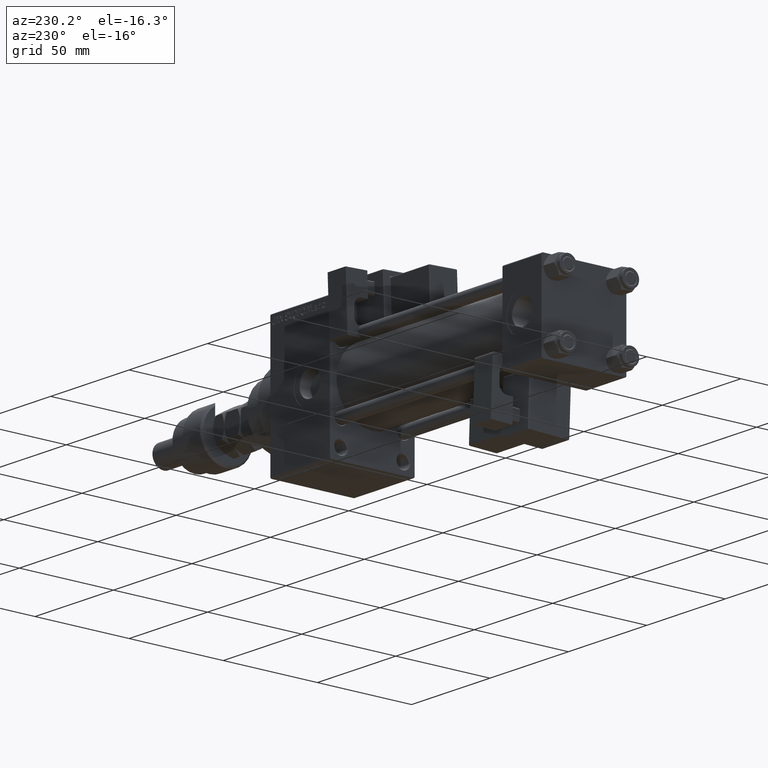
[diagram: clean part render]
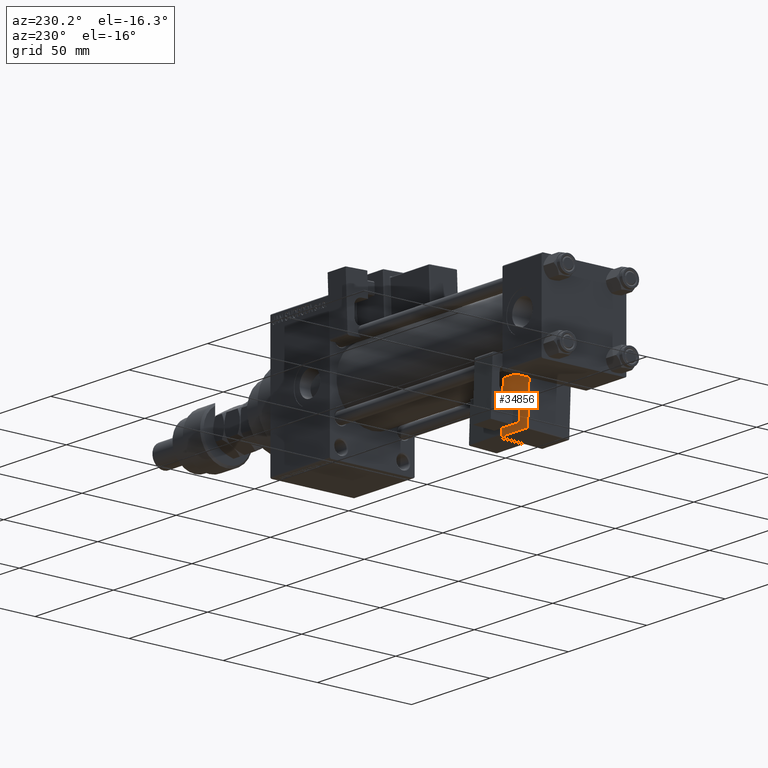
[diagram: same view with one face highlighted and labeled with its STEP entity id]
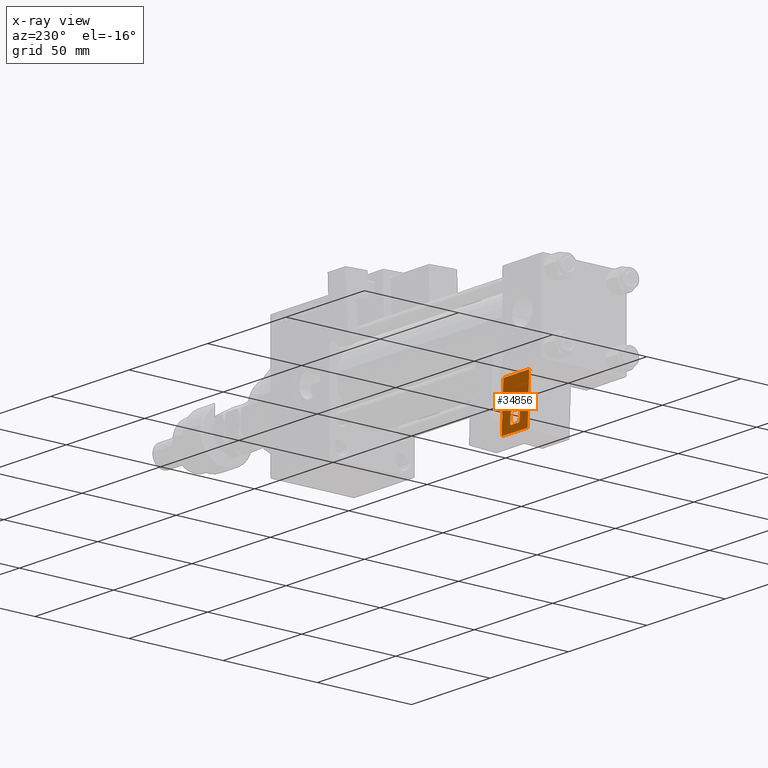
[diagram: x-ray of the same camera — body ghosted, the highlighted face saturated]
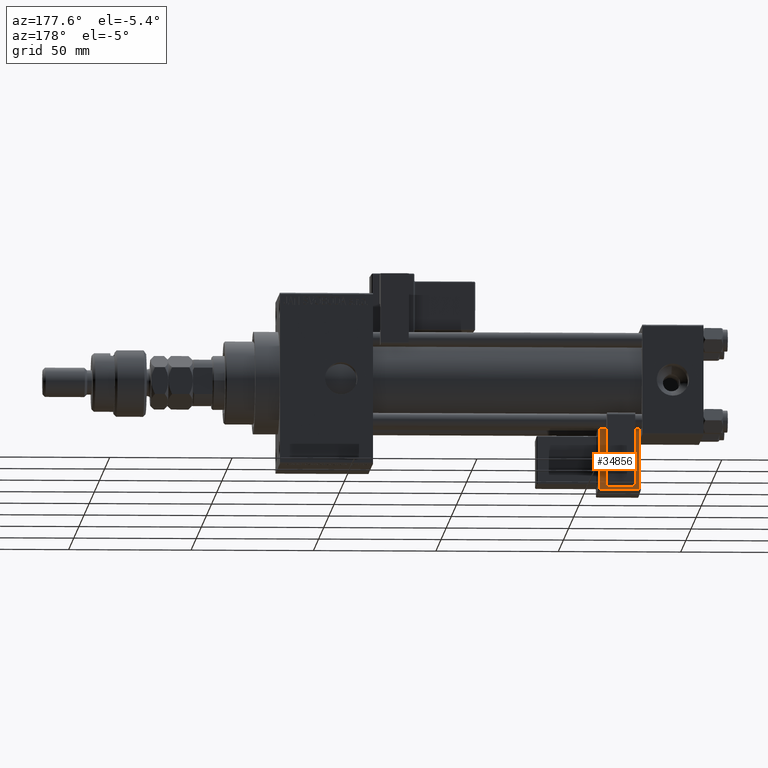
[diagram: same view with one face highlighted and labeled with its STEP entity id]
A machine part, auxiliary view. The second image highlights one B-rep face of the part: STEP entity #34856.
The next image is the same camera in x-ray: the body ghosted, the highlighted face saturated — about 0% of this face is hidden behind the body in this view.
A second angle (auxiliary view) of the same face is appended — the face is thin or edge-on in the first view.
In plain terms, the highlighted planar face has unit normal (0, 0.9994, 0.0353).
Its self-contained STEP definition (entity closure, byte-faithful):
#891 = DIRECTION ( 'NONE',  ( -1.000000000000000000, 0.000000000000000000, -0.000000000000000000 ) ) ;
#1027 = CARTESIAN_POINT ( 'NONE',  ( -3.000000000000000000, -11.75000000000000000, 8.500000000000007105 ) ) ;
#1436 = CARTESIAN_POINT ( 'NONE',  ( 2.499999999999993339, -11.75000000000000000, 3.000000000000000888 ) ) ;
#1478 = CARTESIAN_POINT ( 'NONE',  ( 0.000000000000000000, -11.75000000000000000, 0.000000000000000000 ) ) ;
#1954 = EDGE_LOOP ( 'NONE', ( #50515, #25969, #13470, #30075, #51032, #44655, #44697, #18628 ) ) ;
#2463 = VERTEX_POINT ( 'NONE', #7287 ) ;
#2819 = VERTEX_POINT ( 'NONE', #1436 ) ;
#2829 = EDGE_CURVE ( 'NONE', #14509, #36938, #38716, .T. ) ;
#3133 = VERTEX_POINT ( 'NONE', #48166 ) ;
#3231 = VERTEX_POINT ( 'NONE', #1027 ) ;
#3825 = CARTESIAN_POINT ( 'NONE',  ( 8.250000000000003553, -11.75000000000000000, -1.000000000000000888 ) ) ;
#4414 = CARTESIAN_POINT ( 'NONE',  ( 2.500000000000006661, -11.75000000000000000, 9.000000000000001776 ) ) ;
#4657 = DIRECTION ( 'NONE',  ( -1.445602896647339163E-16, -0.000000000000000000, 1.000000000000000000 ) ) ;
#5098 = DIRECTION ( 'NONE',  ( 0.7071067811865474617, -0.000000000000000000, 0.7071067811865474617 ) ) ;
#6750 = ORIENTED_EDGE ( 'NONE', *, *, #9526, .T. ) ;
#7147 = EDGE_LOOP ( 'NONE', ( #14322, #11054, #6750, #38954 ) ) ;
#7287 = CARTESIAN_POINT ( 'NONE',  ( 3.000000000000000888, -11.75000000000000000, 3.500000000000008438 ) ) ;
#8941 = CARTESIAN_POINT ( 'NONE',  ( -8.250000000000000000, -11.75000000000000000, 25.00000000000000000 ) ) ;
#9526 = EDGE_CURVE ( 'NONE', #13306, #37833, #50771, .T. ) ;
#9540 = CARTESIAN_POINT ( 'NONE',  ( -8.250000000000000000, -11.75000000000000000, 24.50000000000000000 ) ) ;
#11052 = EDGE_CURVE ( 'NONE', #3231, #36776, #39414, .T. ) ;
#11054 = ORIENTED_EDGE ( 'NONE', *, *, #14532, .T. ) ;
#11594 = VECTOR ( 'NONE', #891, 1000.000000000000000 ) ;
#12960 = CARTESIAN_POINT ( 'NONE',  ( -8.750000000000003553, -11.75000000000000000, -0.5000000000000002220 ) ) ;
#13052 = CARTESIAN_POINT ( 'NONE',  ( 8.250000000000003553, -11.75000000000000000, -0.5000000000000002220 ) ) ;
#13216 = CARTESIAN_POINT ( 'NONE',  ( 8.750000000000000000, -11.75000000000000000, 24.49999999999999645 ) ) ;
#13306 = VERTEX_POINT ( 'NONE', #9540 ) ;
#13470 = ORIENTED_EDGE ( 'NONE', *, *, #17875, .T. ) ;
#14322 = ORIENTED_EDGE ( 'NONE', *, *, #2829, .T. ) ;
#14509 = VERTEX_POINT ( 'NONE', #13052 ) ;
#14532 = EDGE_CURVE ( 'NONE', #36938, #13306, #17167, .T. ) ;
#14887 = FACE_BOUND ( 'NONE', #1954, .T. ) ;
#15032 = EDGE_CURVE ( 'NONE', #36776, #3133, #45532, .T. ) ;
#16416 = CARTESIAN_POINT ( 'NONE',  ( -3.000000000000000000, -11.75000000000000000, 8.500000000000007105 ) ) ;
#16650 = VECTOR ( 'NONE', #37993, 1000.000000000000000 ) ;
#17167 = LINE ( 'NONE', #8941, #33915 ) ;
#17270 = VECTOR ( 'NONE', #48610, 1000.000000000000000 ) ;
#17519 = CARTESIAN_POINT ( 'NONE',  ( 3.000000000000000000, -11.75000000000000000, 9.000000000000001776 ) ) ;
#17654 = VERTEX_POINT ( 'NONE', #19521 ) ;
#17875 = EDGE_CURVE ( 'NONE', #23540, #33734, #33128, .T. ) ;
#18376 = EDGE_CURVE ( 'NONE', #3133, #2819, #34150, .T. ) ;
#18628 = ORIENTED_EDGE ( 'NONE', *, *, #25183, .T. ) ;
#19521 = CARTESIAN_POINT ( 'NONE',  ( 3.000000000000000000, -11.75000000000000000, 8.500000000000000000 ) ) ;
#20313 = VECTOR ( 'NONE', #5098, 1000.000000000000114 ) ;
#20497 = CARTESIAN_POINT ( 'NONE',  ( 3.000000000000000000, -11.75000000000000000, 9.000000000000001776 ) ) ;
#23540 = VERTEX_POINT ( 'NONE', #35766 ) ;
#23768 = CARTESIAN_POINT ( 'NONE',  ( -3.000000000000000000, -11.75000000000000000, 9.000000000000001776 ) ) ;
#24719 = CARTESIAN_POINT ( 'NONE',  ( -2.499999999999978684, -11.75000000000000000, 3.000000000000000444 ) ) ;
#24974 = CARTESIAN_POINT ( 'NONE',  ( -8.250000000000003553, -11.75000000000000000, -0.5000000000000002220 ) ) ;
#25183 = EDGE_CURVE ( 'NONE', #2819, #2463, #41842, .T. ) ;
#25608 = CARTESIAN_POINT ( 'NONE',  ( -2.499999999999999556, -11.75000000000000000, 9.000000000000001776 ) ) ;
#25969 = ORIENTED_EDGE ( 'NONE', *, *, #37590, .T. ) ;
#26868 = VECTOR ( 'NONE', #36522, 1000.000000000000000 ) ;
#27669 = EDGE_CURVE ( 'NONE', #2463, #17654, #38377, .T. ) ;
#30075 = ORIENTED_EDGE ( 'NONE', *, *, #32142, .T. ) ;
#31014 = VECTOR ( 'NONE', #45751, 1000.000000000000000 ) ;
#32142 = EDGE_CURVE ( 'NONE', #33734, #3231, #36725, .T. ) ;
#33128 = LINE ( 'NONE', #20497, #43743 ) ;
#33154 = DIRECTION ( 'NONE',  ( -0.7071067811865524577, 0.000000000000000000, -0.7071067811865426878 ) ) ;
#33734 = VERTEX_POINT ( 'NONE', #25608 ) ;
#33767 = VECTOR ( 'NONE', #39681, 1000.000000000000000 ) ;
#33915 = VECTOR ( 'NONE', #47318, 1000.000000000000000 ) ;
#34150 = LINE ( 'NONE', #50331, #16650 ) ;
#34856 = ADVANCED_FACE ( 'NONE', ( #35191, #14887 ), #43134, .T. ) ;
#35191 = FACE_OUTER_BOUND ( 'NONE', #7147, .T. ) ;
#35766 = CARTESIAN_POINT ( 'NONE',  ( 2.500000000000006661, -11.75000000000000000, 9.000000000000001776 ) ) ;
#36522 = DIRECTION ( 'NONE',  ( -0.7071067811865426878, -0.000000000000000000, 0.7071067811865524577 ) ) ;
#36725 = LINE ( 'NONE', #16416, #39759 ) ;
#36776 = VERTEX_POINT ( 'NONE', #47761 ) ;
#36938 = VERTEX_POINT ( 'NONE', #24974 ) ;
#37590 = EDGE_CURVE ( 'NONE', #17654, #23540, #41420, .T. ) ;
#37833 = VERTEX_POINT ( 'NONE', #44933 ) ;
#37949 = VECTOR ( 'NONE', #4657, 1000.000000000000000 ) ;
#37993 = DIRECTION ( 'NONE',  ( 1.000000000000000000, -0.000000000000000000, 7.228014483236695816E-17 ) ) ;
#38377 = LINE ( 'NONE', #17519, #37949 ) ;
#38716 = LINE ( 'NONE', #12960, #11594 ) ;
#38954 = ORIENTED_EDGE ( 'NONE', *, *, #54258, .T. ) ;
#39414 = LINE ( 'NONE', #23768, #33767 ) ;
#39578 = DIRECTION ( 'NONE',  ( 0.000000000000000000, -0.000000000000000000, 1.000000000000000000 ) ) ;
#39681 = DIRECTION ( 'NONE',  ( 0.000000000000000000, 0.000000000000000000, -1.000000000000000000 ) ) ;
#39759 = VECTOR ( 'NONE', #33154, 1000.000000000000000 ) ;
#39855 = DIRECTION ( 'NONE',  ( 0.000000000000000000, 1.000000000000000000, 0.000000000000000000 ) ) ;
#41380 = LINE ( 'NONE', #3825, #31014 ) ;
#41420 = LINE ( 'NONE', #4414, #26868 ) ;
#41842 = LINE ( 'NONE', #51149, #20313 ) ;
#43134 = PLANE ( 'NONE',  #47763 ) ;
#43743 = VECTOR ( 'NONE', #54226, 1000.000000000000000 ) ;
#44655 = ORIENTED_EDGE ( 'NONE', *, *, #15032, .T. ) ;
#44697 = ORIENTED_EDGE ( 'NONE', *, *, #18376, .T. ) ;
#44933 = CARTESIAN_POINT ( 'NONE',  ( 8.250000000000000000, -11.75000000000000000, 24.49999999999999645 ) ) ;
#45532 = LINE ( 'NONE', #24719, #17270 ) ;
#45751 = DIRECTION ( 'NONE',  ( 1.334402673828313339E-16, -0.000000000000000000, -1.000000000000000000 ) ) ;
#46662 = DIRECTION ( 'NONE',  ( 1.000000000000000000, -0.000000000000000000, -1.982541115402065110E-16 ) ) ;
#47318 = DIRECTION ( 'NONE',  ( 1.334402673828313093E-16, -0.000000000000000000, 1.000000000000000000 ) ) ;
#47761 = CARTESIAN_POINT ( 'NONE',  ( -3.000000000000000000, -11.75000000000000000, 3.500000000000022204 ) ) ;
#47763 = AXIS2_PLACEMENT_3D ( 'NONE', #1478, #39855, #39578 ) ;
#48166 = CARTESIAN_POINT ( 'NONE',  ( -2.499999999999976907, -11.75000000000000000, 3.000000000000000444 ) ) ;
#48610 = DIRECTION ( 'NONE',  ( 0.7071067811865472397, -0.000000000000000000, -0.7071067811865479058 ) ) ;
#50331 = CARTESIAN_POINT ( 'NONE',  ( 3.000000000000000888, -11.75000000000000000, 3.000000000000000888 ) ) ;
#50515 = ORIENTED_EDGE ( 'NONE', *, *, #27669, .T. ) ;
#50771 = LINE ( 'NONE', #13216, #51330 ) ;
#51032 = ORIENTED_EDGE ( 'NONE', *, *, #11052, .T. ) ;
#51149 = CARTESIAN_POINT ( 'NONE',  ( 3.000000000000000888, -11.75000000000000000, 3.500000000000008438 ) ) ;
#51330 = VECTOR ( 'NONE', #46662, 1000.000000000000000 ) ;
#54226 = DIRECTION ( 'NONE',  ( -1.000000000000000000, 0.000000000000000000, 0.000000000000000000 ) ) ;
#54258 = EDGE_CURVE ( 'NONE', #37833, #14509, #41380, .T. ) ;